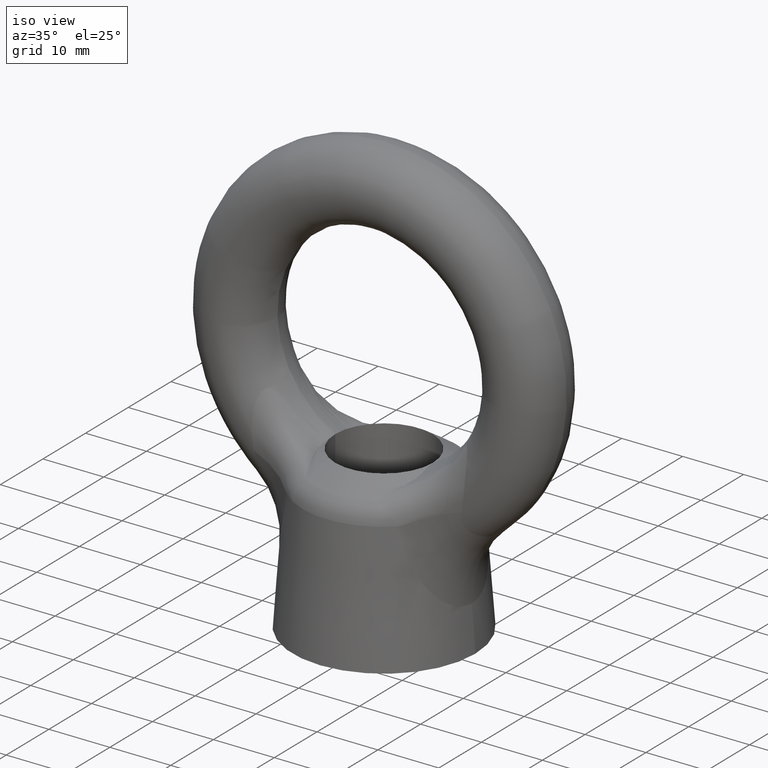
[diagram: clean part render]
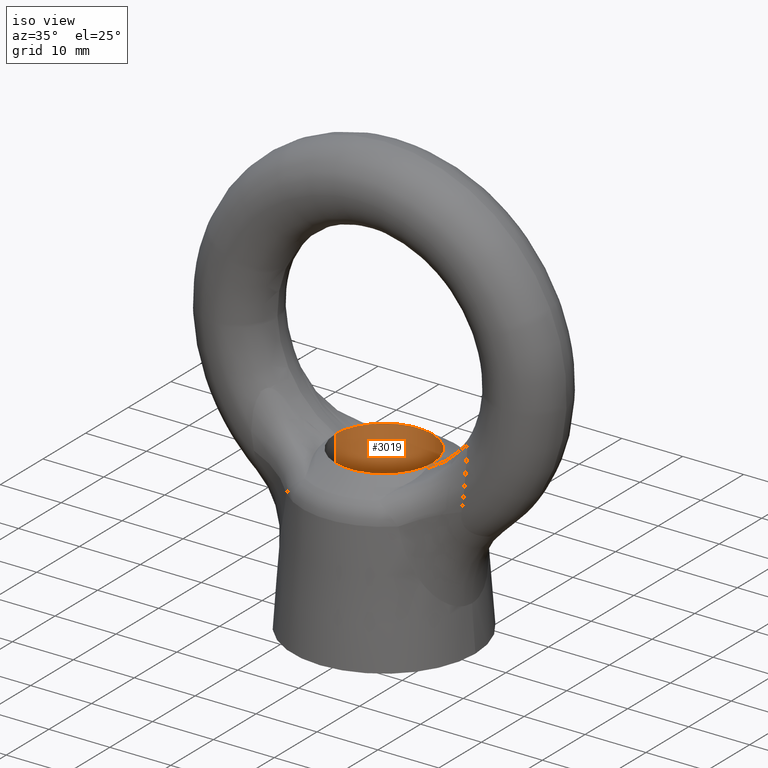
[diagram: same view with one face highlighted and labeled with its STEP entity id]
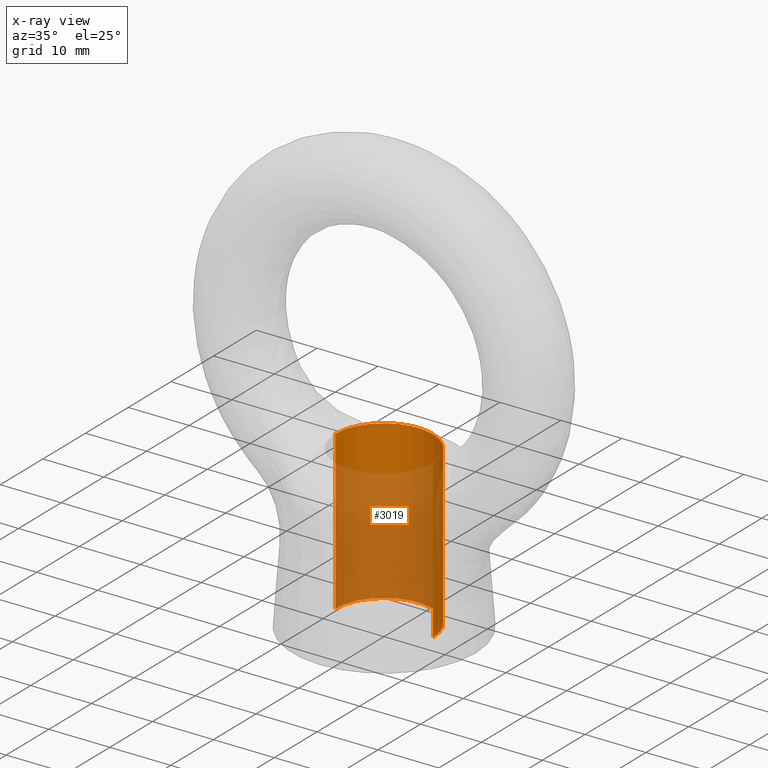
[diagram: x-ray of the same camera — body ghosted, the highlighted face saturated]
A machine part, iso view. The second image highlights one B-rep face of the part: STEP entity #3019.
The next image is the same camera in x-ray: the body ghosted, the highlighted face saturated — about 72% of this face is hidden behind the body in this view.
In plain terms, the highlighted cylindrical surface (partial cylindrical patch) has radius 8 mm, axis along (0, 0, -1).
Its self-contained STEP definition (entity closure, byte-faithful):
#2114 = DIRECTION ( 'NONE',  ( -1.000000000000000000, 0.0000000000000000000, 0.0000000000000000000 ) ) ;
#2923 = VERTEX_POINT ( 'NONE', #3651 ) ;
#2926 = VERTEX_POINT ( 'NONE', #4097 ) ;
#2934 = EDGE_CURVE ( 'NONE', #2926, #2953, #4196, .T. ) ;
#2937 = VERTEX_POINT ( 'NONE', #4190 ) ;
#2951 = EDGE_CURVE ( 'NONE', #2923, #2937, #4071, .T. ) ;
#2953 = VERTEX_POINT ( 'NONE', #4067 ) ;
#3019 = ADVANCED_FACE ( 'NONE', ( #9195 ), #9192, .F. ) ;
#3020 = EDGE_LOOP ( 'NONE', ( #3021, #3022, #3163, #3164 ) ) ;
#3021 = ORIENTED_EDGE ( 'NONE', *, *, #2934, .F. ) ;
#3022 = ORIENTED_EDGE ( 'NONE', *, *, #3184, .F. ) ;
#3163 = ORIENTED_EDGE ( 'NONE', *, *, #2951, .T. ) ;
#3164 = ORIENTED_EDGE ( 'NONE', *, *, #3165, .T. ) ;
#3165 = EDGE_CURVE ( 'NONE', #2937, #2953, #14814, .T. ) ;
#3184 = EDGE_CURVE ( 'NONE', #2923, #2926, #6307, .T. ) ;
#3651 = CARTESIAN_POINT ( 'NONE',  ( -8.000000000000000000, 0.0000000000000000000, -15.56437700000010200 ) ) ;
#4067 = CARTESIAN_POINT ( 'NONE',  ( 8.000000000000000000, 9.796850830579018100E-016, -41.50000000000000000 ) ) ;
#4068 = DIRECTION ( 'NONE',  ( 0.0000000000000000000, 0.0000000000000000000, -1.000000000000000000 ) ) ;
#4069 = VECTOR ( 'NONE', #4068, 1000.000000000000000 ) ;
#4070 = CARTESIAN_POINT ( 'NONE',  ( -8.000000000000000000, 0.0000000000000000000, 958.0000000000000000 ) ) ;
#4071 = LINE ( 'NONE', #4070, #4069 ) ;
#4097 = CARTESIAN_POINT ( 'NONE',  ( 8.000000000000000000, 0.0000000000000000000, -15.56437700000015000 ) ) ;
#4190 = CARTESIAN_POINT ( 'NONE',  ( -8.000000000000000000, 0.0000000000000000000, -41.50000000000000000 ) ) ;
#4193 = DIRECTION ( 'NONE',  ( 0.0000000000000000000, 0.0000000000000000000, -1.000000000000000000 ) ) ;
#4194 = VECTOR ( 'NONE', #4193, 1000.000000000000000 ) ;
#4195 = CARTESIAN_POINT ( 'NONE',  ( 8.000000000000000000, 9.796850830579018100E-016, 958.0000000000000000 ) ) ;
#4196 = LINE ( 'NONE', #4195, #4194 ) ;
#6304 = DIRECTION ( 'NONE',  ( 0.0000000000000000000, 0.0000000000000000000, -1.000000000000000000 ) ) ;
#6305 = CARTESIAN_POINT ( 'NONE',  ( 0.0000000000000000000, 0.0000000000000000000, -15.56437700000010200 ) ) ;
#6306 = AXIS2_PLACEMENT_3D ( 'NONE', #6305, #6304, #2114 ) ;
#6307 = CIRCLE ( 'NONE', #6306, 8.000000000000000000 ) ;
#9189 = DIRECTION ( 'NONE',  ( -1.000000000000000000, 0.0000000000000000000, 0.0000000000000000000 ) ) ;
#9190 = DIRECTION ( 'NONE',  ( 0.0000000000000000000, 0.0000000000000000000, -1.000000000000000000 ) ) ;
#9191 = AXIS2_PLACEMENT_3D ( 'NONE', #9194, #9190, #9189 ) ;
#9192 = CYLINDRICAL_SURFACE ( 'NONE', #9191, 8.000000000000000000 ) ;
#9194 = CARTESIAN_POINT ( 'NONE',  ( 0.0000000000000000000, 0.0000000000000000000, 958.0000000000000000 ) ) ;
#9195 = FACE_OUTER_BOUND ( 'NONE', #3020, .T. ) ;
#14814 = CIRCLE ( 'NONE', #14891, 8.000000000000000000 ) ;
#14888 = DIRECTION ( 'NONE',  ( -1.000000000000000000, 0.0000000000000000000, 0.0000000000000000000 ) ) ;
#14889 = DIRECTION ( 'NONE',  ( 0.0000000000000000000, 0.0000000000000000000, -1.000000000000000000 ) ) ;
#14890 = CARTESIAN_POINT ( 'NONE',  ( 0.0000000000000000000, 0.0000000000000000000, -41.50000000000000000 ) ) ;
#14891 = AXIS2_PLACEMENT_3D ( 'NONE', #14890, #14889, #14888 ) ;